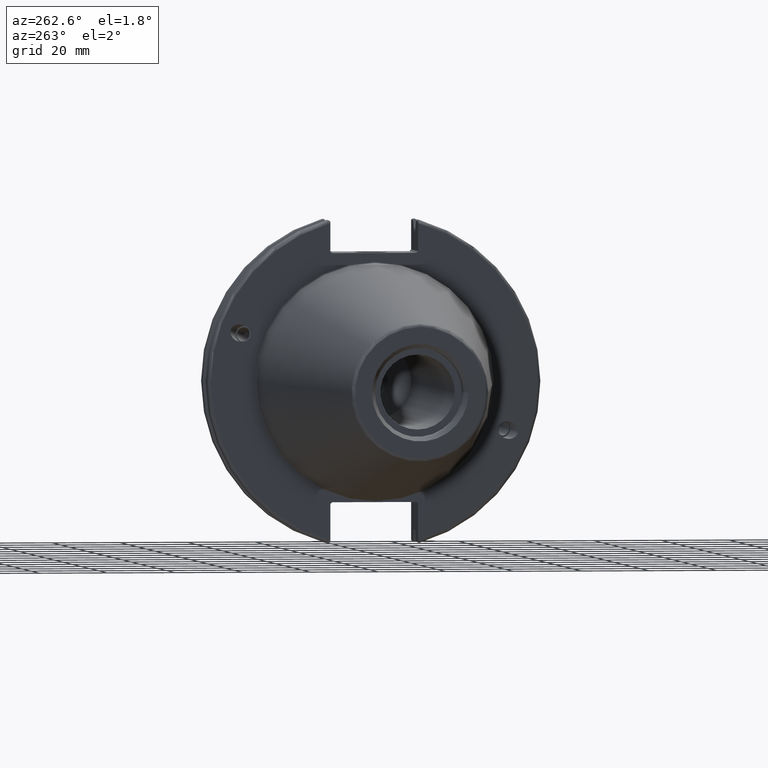
[diagram: clean part render]
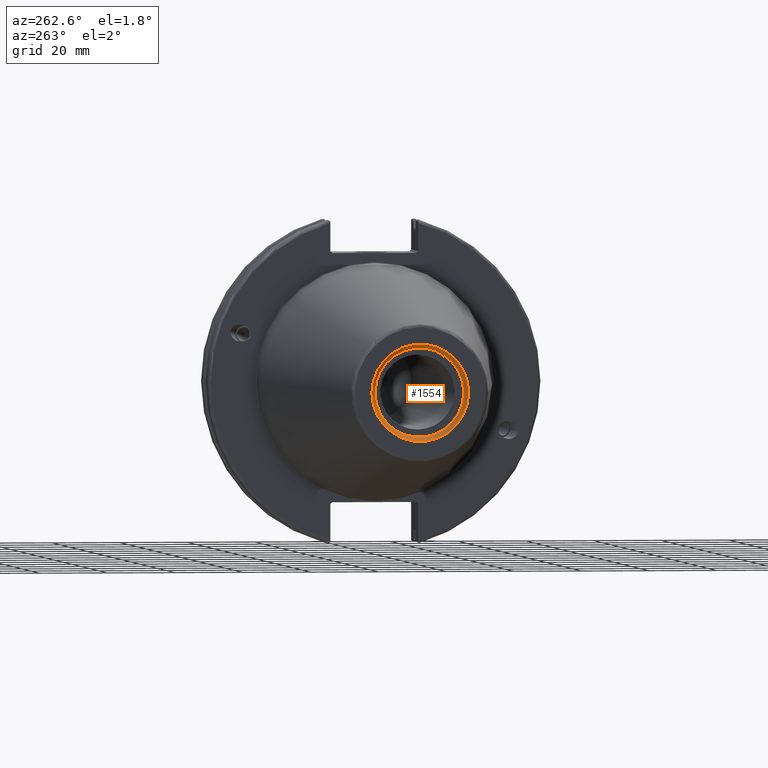
[diagram: same view with one face highlighted and labeled with its STEP entity id]
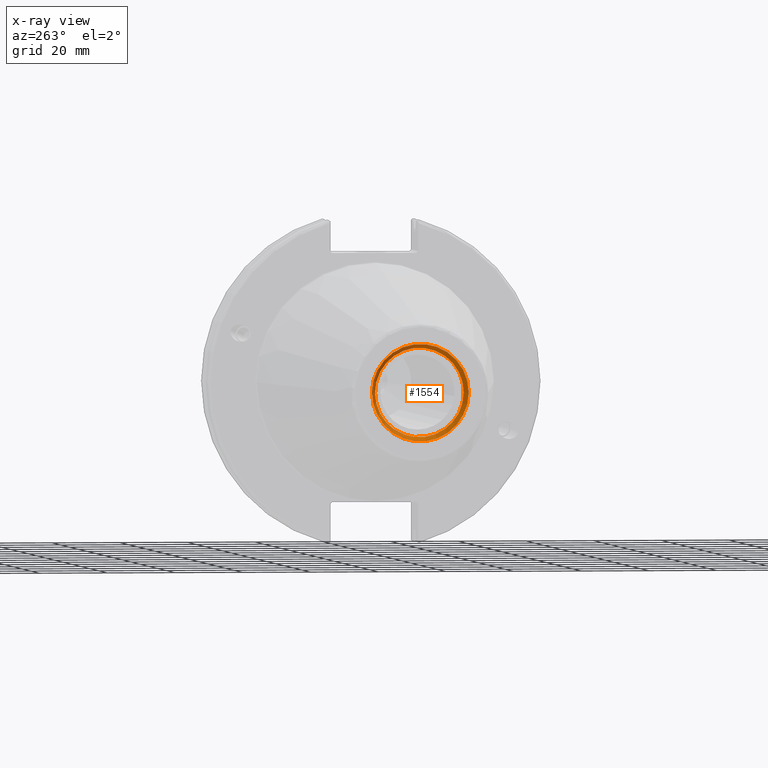
[diagram: x-ray of the same camera — body ghosted, the highlighted face saturated]
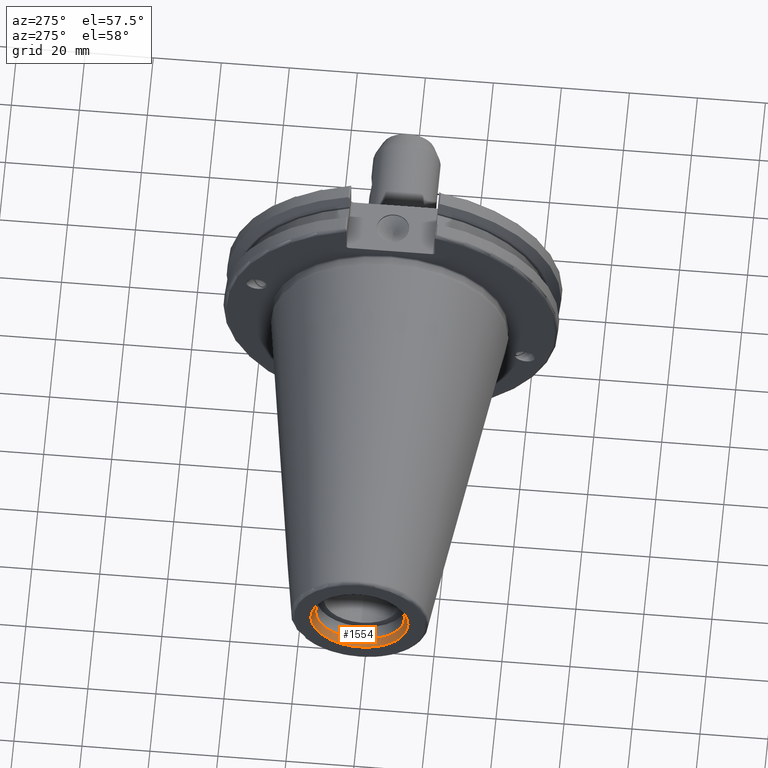
[diagram: same view with one face highlighted and labeled with its STEP entity id]
A machine part, auxiliary view. The second image highlights one B-rep face of the part: STEP entity #1554.
The next image is the same camera in x-ray: the body ghosted, the highlighted face saturated — about 0% of this face is hidden behind the body in this view.
A second angle (auxiliary view) of the same face is appended — the face is thin or edge-on in the first view.
In plain terms, the highlighted conical surface has half-angle 30 deg.
Its self-contained STEP definition (entity closure, byte-faithful):
#206=FACE_OUTER_BOUND('',#310,.T.);
#310=EDGE_LOOP('',(#1448,#1449,#1450,#1451));
#378=CIRCLE('',#1702,14.2875);
#390=CIRCLE('',#1740,13.1);
#481=LINE('',#3180,#573);
#573=VECTOR('',#2160,13.69375);
#762=VERTEX_POINT('',#3110);
#770=VERTEX_POINT('',#3176);
#968=EDGE_CURVE('',#762,#762,#378,.T.);
#997=EDGE_CURVE('',#770,#770,#390,.T.);
#998=EDGE_CURVE('',#770,#762,#481,.T.);
#1448=ORIENTED_EDGE('',*,*,#997,.T.);
#1449=ORIENTED_EDGE('',*,*,#998,.T.);
#1450=ORIENTED_EDGE('',*,*,#968,.F.);
#1451=ORIENTED_EDGE('',*,*,#998,.F.);
#1470=CONICAL_SURFACE('',#1741,13.69375,0.523598775598298);
#1554=ADVANCED_FACE('',(#206),#1470,.F.);
#1702=AXIS2_PLACEMENT_3D('',#3111,#2065,#2066);
#1740=AXIS2_PLACEMENT_3D('',#3178,#2156,#2157);
#1741=AXIS2_PLACEMENT_3D('',#3179,#2158,#2159);
#2065=DIRECTION('center_axis',(1.,0.,0.));
#2066=DIRECTION('ref_axis',(0.,0.,-1.));
#2156=DIRECTION('center_axis',(1.,0.,0.));
#2157=DIRECTION('ref_axis',(0.,0.,-1.));
#2158=DIRECTION('center_axis',(-1.,0.,0.));
#2159=DIRECTION('ref_axis',(0.,1.,0.));
#2160=DIRECTION('',(-0.866025403784439,-0.499999999999999,-6.12323399573676E-17));
#3110=CARTESIAN_POINT('',(-101.6,-14.2875,-1.74971411428178E-15));
#3111=CARTESIAN_POINT('Origin',(-101.6,0.,0.));
#3176=CARTESIAN_POINT('',(-99.5431896660119,-13.1,-1.60428730688303E-15));
#3178=CARTESIAN_POINT('Origin',(-99.5431896660119,0.,0.));
#3179=CARTESIAN_POINT('Origin',(-100.571594833006,0.,0.));
#3180=CARTESIAN_POINT('',(-100.571594833006,-13.69375,-1.67700071058241E-15));